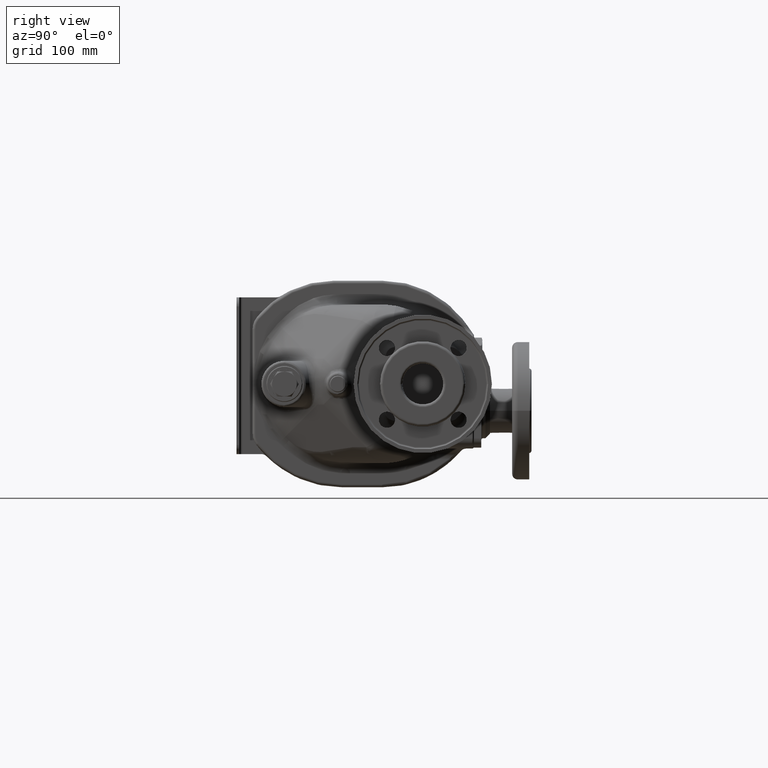
[diagram: clean part render]
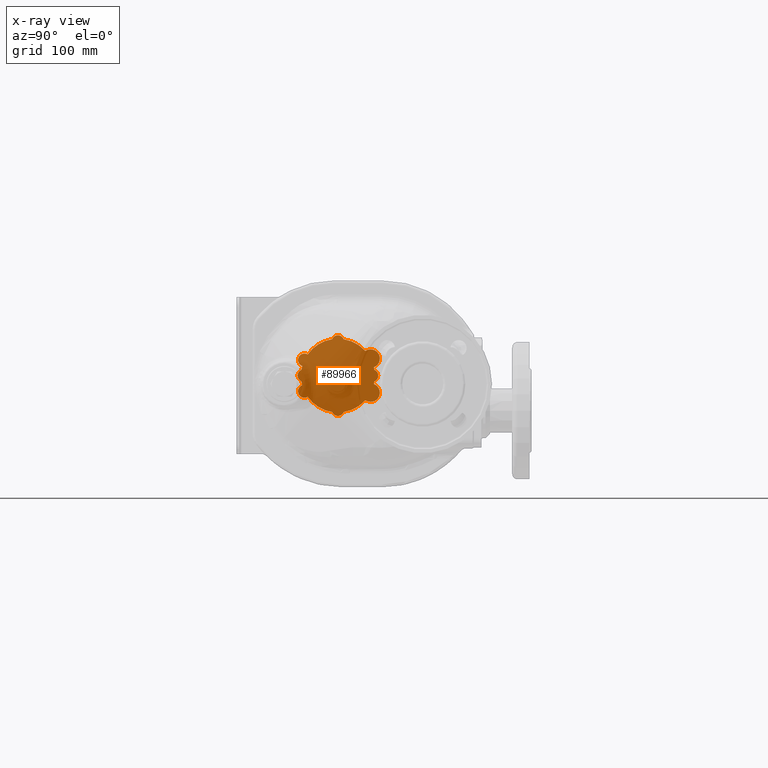
[diagram: x-ray — body ghosted, one internal face saturated and labeled with its STEP entity id]
A machine part, right view, then the same camera in x-ray: the body is ghosted and one INTERNAL B-rep face — a face not visible from any outside direction — is saturated and labeled: STEP entity #89966.
In plain terms, the highlighted planar face has unit normal (-1, 0, 0).
Its self-contained STEP definition (entity closure, byte-faithful):
#34110=CARTESIAN_POINT('',(-1.183E2,7.374768851853E1,1.690473046963E1));
#34111=DIRECTION('',(-1.E0,0.E0,0.E0));
#34112=DIRECTION('',(0.E0,-3.416953862921E-1,-9.398107591354E-1));
#34113=AXIS2_PLACEMENT_3D('',#34110,#34111,#34112);
#34119=CARTESIAN_POINT('',(-1.183E2,1.1E2,0.E0));
#34120=DIRECTION('',(1.E0,0.E0,0.E0));
#34121=DIRECTION('',(0.E0,9.738234945335E-1,-2.273055245580E-1));
#34122=AXIS2_PLACEMENT_3D('',#34119,#34120,#34121);
#34132=CARTESIAN_POINT('',(-1.183E2,1.47E2,0.E0));
#34133=DIRECTION('',(-1.E0,0.E0,0.E0));
#34134=DIRECTION('',(0.E0,3.712462462462E-1,9.285344498984E-1));
#34135=AXIS2_PLACEMENT_3D('',#34132,#34133,#34134);
#34150=CARTESIAN_POINT('',(-1.183E2,1.1E2,0.E0));
#34151=DIRECTION('',(1.E0,0.E0,0.E0));
#34152=DIRECTION('',(0.E0,9.876478040541E-1,1.566901884204E-1));
#34153=AXIS2_PLACEMENT_3D('',#34150,#34151,#34152);
#34163=CARTESIAN_POINT('',(-1.183E2,1.454804333271E2,1.846994452940E1));
#34164=DIRECTION('',(-1.E0,0.E0,0.E0));
#34165=DIRECTION('',(0.E0,0.E0,1.E0));
#34166=AXIS2_PLACEMENT_3D('',#34163,#34164,#34165);
#34172=CARTESIAN_POINT('',(-1.183E2,1.454804333271E2,1.846994452940E1));
#34173=DIRECTION('',(-1.E0,0.E0,0.E0));
#34174=DIRECTION('',(0.E0,-5.690033537156E-1,8.223352013993E-1));
#34175=AXIS2_PLACEMENT_3D('',#34172,#34173,#34174);
#34181=CARTESIAN_POINT('',(-1.183E2,1.1E2,0.E0));
#34182=DIRECTION('',(1.E0,0.E0,0.E0));
#34183=DIRECTION('',(0.E0,7.447599947493E-1,6.673324135849E-1));
#34184=AXIS2_PLACEMENT_3D('',#34181,#34182,#34183);
#34199=CARTESIAN_POINT('',(-1.183E2,1.1E2,3.7E1));
#34200=DIRECTION('',(-1.E0,0.E0,0.E0));
#34201=DIRECTION('',(0.E0,-9.285344498984E-1,3.712462462463E-1));
#34202=AXIS2_PLACEMENT_3D('',#34199,#34200,#34201);
#34217=CARTESIAN_POINT('',(-1.183E2,1.1E2,0.E0));
#34218=DIRECTION('',(1.E0,0.E0,0.E0));
#34219=DIRECTION('',(0.E0,-1.566901884203E-1,9.876478040541E-1));
#34220=AXIS2_PLACEMENT_3D('',#34217,#34218,#34219);
#34235=CARTESIAN_POINT('',(-1.183E2,7.374768851853E1,1.690473046963E1));
#34236=DIRECTION('',(-1.E0,0.E0,0.E0));
#34237=DIRECTION('',(0.E0,0.E0,1.E0));
#34238=AXIS2_PLACEMENT_3D('',#34235,#34236,#34237);
#34397=CARTESIAN_POINT('',(-1.183E2,1.1E2,0.E0));
#34398=DIRECTION('',(1.E0,0.E0,0.E0));
#34399=DIRECTION('',(0.E0,-9.661044796378E-1,2.581513788920E-1));
#34400=AXIS2_PLACEMENT_3D('',#34397,#34398,#34399);
#34410=CARTESIAN_POINT('',(-1.183E2,7.3E1,0.E0));
#34411=DIRECTION('',(-1.E0,0.E0,0.E0));
#34412=DIRECTION('',(0.E0,-3.712462462462E-1,-9.285344498984E-1));
#34413=AXIS2_PLACEMENT_3D('',#34410,#34411,#34412);
#34428=CARTESIAN_POINT('',(-1.183E2,1.1E2,0.E0));
#34429=DIRECTION('',(1.E0,0.E0,0.E0));
#34430=DIRECTION('',(0.E0,-9.876478040541E-1,-1.566901884204E-1));
#34431=AXIS2_PLACEMENT_3D('',#34428,#34429,#34430);
#34441=CARTESIAN_POINT('',(-1.183E2,7.374768851853E1,-1.690473046963E1));
#34442=DIRECTION('',(-1.E0,0.E0,0.E0));
#34443=DIRECTION('',(0.E0,0.E0,-1.E0));
#34444=AXIS2_PLACEMENT_3D('',#34441,#34442,#34443);
#34450=CARTESIAN_POINT('',(-1.183E2,7.374768851853E1,-1.690473046963E1));
#34451=DIRECTION('',(-1.E0,0.E0,0.E0));
#34452=DIRECTION('',(0.E0,5.002992490235E-1,-8.658525633308E-1));
#34453=AXIS2_PLACEMENT_3D('',#34450,#34451,#34452);
#34459=CARTESIAN_POINT('',(-1.183E2,1.1E2,0.E0));
#34460=DIRECTION('',(1.E0,0.E0,0.E0));
#34461=DIRECTION('',(0.E0,-8.187554184575E-1,-5.741424603236E-1));
#34462=AXIS2_PLACEMENT_3D('',#34459,#34460,#34461);
#34477=CARTESIAN_POINT('',(-1.183E2,1.1E2,-3.7E1));
#34478=DIRECTION('',(-1.E0,0.E0,0.E0));
#34479=DIRECTION('',(0.E0,9.285344498984E-1,-3.712462462463E-1));
#34480=AXIS2_PLACEMENT_3D('',#34477,#34478,#34479);
#34495=CARTESIAN_POINT('',(-1.183E2,1.1E2,0.E0));
#34496=DIRECTION('',(1.E0,0.E0,0.E0));
#34497=DIRECTION('',(0.E0,1.566901884204E-1,-9.876478040541E-1));
#34498=AXIS2_PLACEMENT_3D('',#34495,#34496,#34497);
#34513=CARTESIAN_POINT('',(-1.183E2,1.454804333271E2,-1.846994452940E1));
#34514=DIRECTION('',(-1.E0,0.E0,0.E0));
#34515=DIRECTION('',(0.E0,0.E0,-1.E0));
#34516=AXIS2_PLACEMENT_3D('',#34513,#34514,#34515);
#34522=CARTESIAN_POINT('',(-1.183E2,1.454804333271E2,-1.846994452940E1));
#34523=DIRECTION('',(-1.E0,0.E0,0.E0));
#34524=DIRECTION('',(0.E0,3.472506454210E-1,9.377723547080E-1));
#34525=AXIS2_PLACEMENT_3D('',#34522,#34523,#34524);
#41643=CARTESIAN_POINT('',(-1.183E2,1.489529397813E2,-9.092220982321E0));
#41644=CARTESIAN_POINT('',(-1.183E2,1.495059121622E2,-6.267607536814E0));
#41645=VERTEX_POINT('',#41643);
#41646=VERTEX_POINT('',#41644);
#41647=CARTESIAN_POINT('',(-1.183E2,1.495059121622E2,6.267607536814E0));
#41648=CARTESIAN_POINT('',(-1.183E2,1.489529397813E2,9.092220982321E0));
#41649=VERTEX_POINT('',#41647);
#41650=VERTEX_POINT('',#41648);
#41651=CARTESIAN_POINT('',(-1.183E2,1.397903997900E2,2.669329654339E1));
#41652=CARTESIAN_POINT('',(-1.183E2,1.162676075368E2,3.950591216216E1));
#41653=VERTEX_POINT('',#41651);
#41654=VERTEX_POINT('',#41652);
#41655=CARTESIAN_POINT('',(-1.183E2,1.037323924632E2,3.950591216216E1));
#41656=CARTESIAN_POINT('',(-1.183E2,7.724978326170E1,2.296569841294E1));
#41657=VERTEX_POINT('',#41655);
#41658=VERTEX_POINT('',#41656);
#41659=CARTESIAN_POINT('',(-1.183E2,7.135582081449E1,1.032605515568E1));
#41660=CARTESIAN_POINT('',(-1.183E2,7.049408783784E1,6.267607536814E0));
#41661=VERTEX_POINT('',#41659);
#41662=VERTEX_POINT('',#41660);
#41663=CARTESIAN_POINT('',(-1.183E2,7.049408783784E1,-6.267607536814E0));
#41664=CARTESIAN_POINT('',(-1.183E2,7.135582081449E1,-1.032605515568E1));
#41665=VERTEX_POINT('',#41663);
#41666=VERTEX_POINT('',#41664);
#41667=CARTESIAN_POINT('',(-1.183E2,7.724978326170E1,-2.296569841294E1));
#41668=CARTESIAN_POINT('',(-1.183E2,1.037323924632E2,-3.950591216216E1));
#41669=VERTEX_POINT('',#41667);
#41670=VERTEX_POINT('',#41668);
#41671=CARTESIAN_POINT('',(-1.183E2,1.162676075368E2,-3.950591216216E1));
#41672=CARTESIAN_POINT('',(-1.183E2,1.397903997900E2,-2.669329654339E1));
#41673=VERTEX_POINT('',#41671);
#41674=VERTEX_POINT('',#41672);
#41675=CARTESIAN_POINT('',(-1.183E2,7.374768851853E1,2.390473046963E1));
#41676=VERTEX_POINT('',#41675);
#41677=CARTESIAN_POINT('',(-1.183E2,1.454804333271E2,2.846994452940E1));
#41678=VERTEX_POINT('',#41677);
#41679=CARTESIAN_POINT('',(-1.183E2,7.374768851853E1,-2.390473046963E1));
#41680=VERTEX_POINT('',#41679);
#41681=CARTESIAN_POINT('',(-1.183E2,1.454804333271E2,-2.846994452940E1));
#41682=VERTEX_POINT('',#41681);
#89920=CARTESIAN_POINT('',(-1.183E2,1.1E2,0.E0));
#89921=DIRECTION('',(-1.E0,0.E0,0.E0));
#89922=DIRECTION('',(0.E0,-1.E0,0.E0));
#89923=AXIS2_PLACEMENT_3D('',#89920,#89921,#89922);
#89924=PLANE('',#89923);
#89926=ORIENTED_EDGE('',*,*,#89925,.F.);
#89928=ORIENTED_EDGE('',*,*,#89927,.T.);
#89930=ORIENTED_EDGE('',*,*,#89929,.T.);
#89932=ORIENTED_EDGE('',*,*,#89931,.F.);
#89934=ORIENTED_EDGE('',*,*,#89933,.T.);
#89936=ORIENTED_EDGE('',*,*,#89935,.F.);
#89938=ORIENTED_EDGE('',*,*,#89937,.T.);
#89940=ORIENTED_EDGE('',*,*,#89939,.T.);
#89942=ORIENTED_EDGE('',*,*,#89941,.F.);
#89944=ORIENTED_EDGE('',*,*,#89943,.T.);
#89946=ORIENTED_EDGE('',*,*,#89945,.F.);
#89947=ORIENTED_EDGE('',*,*,#89906,.T.);
#89949=ORIENTED_EDGE('',*,*,#89948,.T.);
#89951=ORIENTED_EDGE('',*,*,#89950,.F.);
#89953=ORIENTED_EDGE('',*,*,#89952,.T.);
#89955=ORIENTED_EDGE('',*,*,#89954,.F.);
#89957=ORIENTED_EDGE('',*,*,#89956,.T.);
#89959=ORIENTED_EDGE('',*,*,#89958,.T.);
#89961=ORIENTED_EDGE('',*,*,#89960,.F.);
#89963=ORIENTED_EDGE('',*,*,#89962,.T.);
#89964=EDGE_LOOP('',(#89926,#89928,#89930,#89932,#89934,#89936,#89938,#89940,
#89942,#89944,#89946,#89947,#89949,#89951,#89953,#89955,#89957,#89959,#89961,
#89963));
#89965=FACE_OUTER_BOUND('',#89964,.F.);
#89966=ADVANCED_FACE('',(#89965),#89924,.F.);
#34114=CIRCLE('',#34113,7.E0);
#34123=CIRCLE('',#34122,4.E1);
#34136=CIRCLE('',#34135,6.75E0);
#34154=CIRCLE('',#34153,4.E1);
#34167=CIRCLE('',#34166,1.E1);
#34176=CIRCLE('',#34175,1.E1);
#34185=CIRCLE('',#34184,4.E1);
#34203=CIRCLE('',#34202,6.75E0);
#34221=CIRCLE('',#34220,4.E1);
#34239=CIRCLE('',#34238,7.E0);
#34401=CIRCLE('',#34400,4.E1);
#34414=CIRCLE('',#34413,6.75E0);
#34432=CIRCLE('',#34431,4.E1);
#34445=CIRCLE('',#34444,7.E0);
#34454=CIRCLE('',#34453,7.E0);
#34463=CIRCLE('',#34462,4.E1);
#34481=CIRCLE('',#34480,6.75E0);
#34499=CIRCLE('',#34498,4.E1);
#34517=CIRCLE('',#34516,1.E1);
#34526=CIRCLE('',#34525,1.E1);
#89906=EDGE_CURVE('',#41661,#41676,#34114,.T.);
#89925=EDGE_CURVE('',#41645,#41646,#34123,.T.);
#89927=EDGE_CURVE('',#41645,#41682,#34526,.T.);
#89929=EDGE_CURVE('',#41682,#41674,#34517,.T.);
#89931=EDGE_CURVE('',#41673,#41674,#34499,.T.);
#89933=EDGE_CURVE('',#41673,#41670,#34481,.T.);
#89935=EDGE_CURVE('',#41669,#41670,#34463,.T.);
#89937=EDGE_CURVE('',#41669,#41680,#34454,.T.);
#89939=EDGE_CURVE('',#41680,#41666,#34445,.T.);
#89941=EDGE_CURVE('',#41665,#41666,#34432,.T.);
#89943=EDGE_CURVE('',#41665,#41662,#34414,.T.);
#89945=EDGE_CURVE('',#41661,#41662,#34401,.T.);
#89948=EDGE_CURVE('',#41676,#41658,#34239,.T.);
#89950=EDGE_CURVE('',#41657,#41658,#34221,.T.);
#89952=EDGE_CURVE('',#41657,#41654,#34203,.T.);
#89954=EDGE_CURVE('',#41653,#41654,#34185,.T.);
#89956=EDGE_CURVE('',#41653,#41678,#34176,.T.);
#89958=EDGE_CURVE('',#41678,#41650,#34167,.T.);
#89960=EDGE_CURVE('',#41649,#41650,#34154,.T.);
#89962=EDGE_CURVE('',#41649,#41646,#34136,.T.);